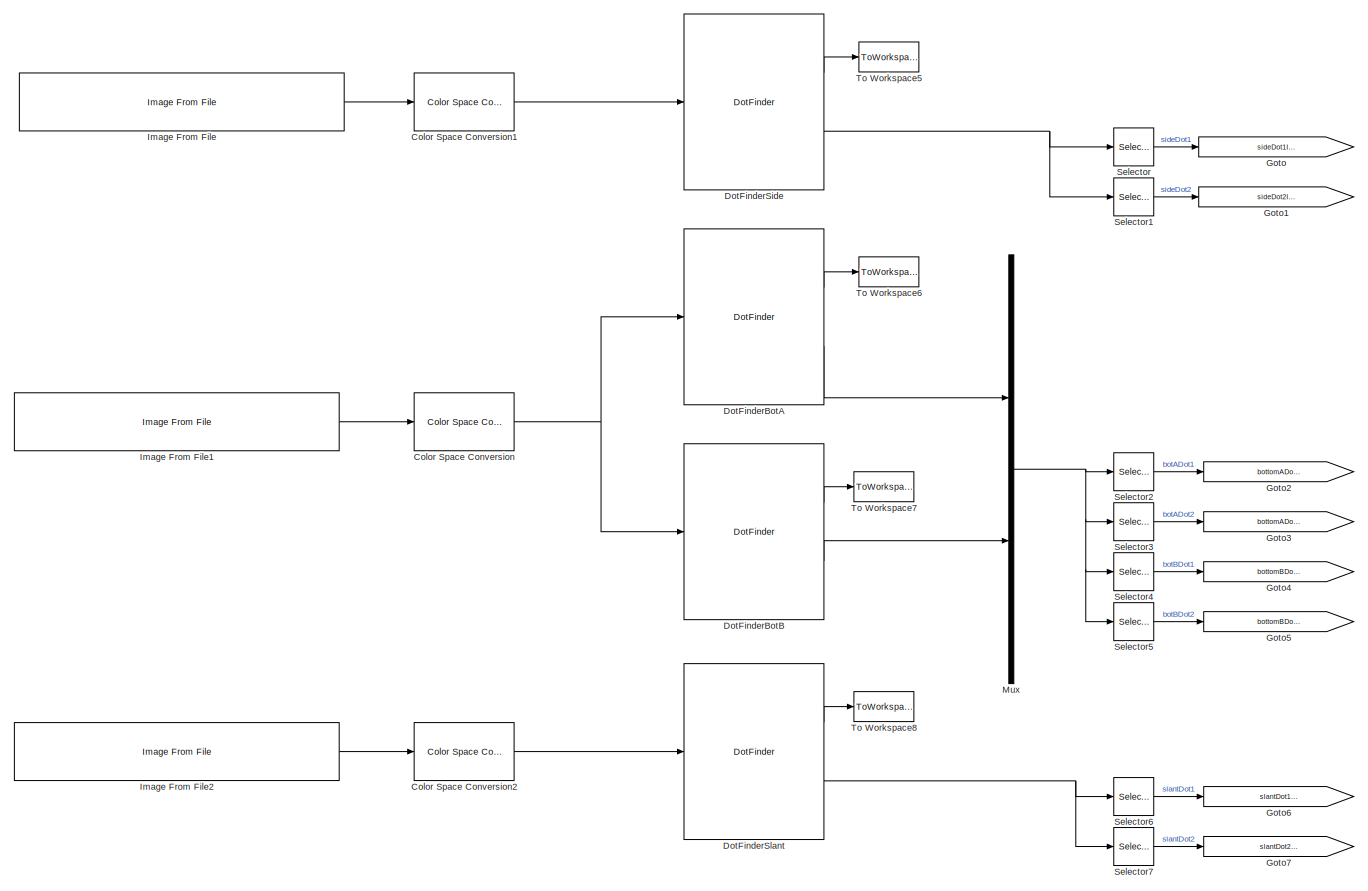
[diagram: root canvas - part 1/3, middle left region]
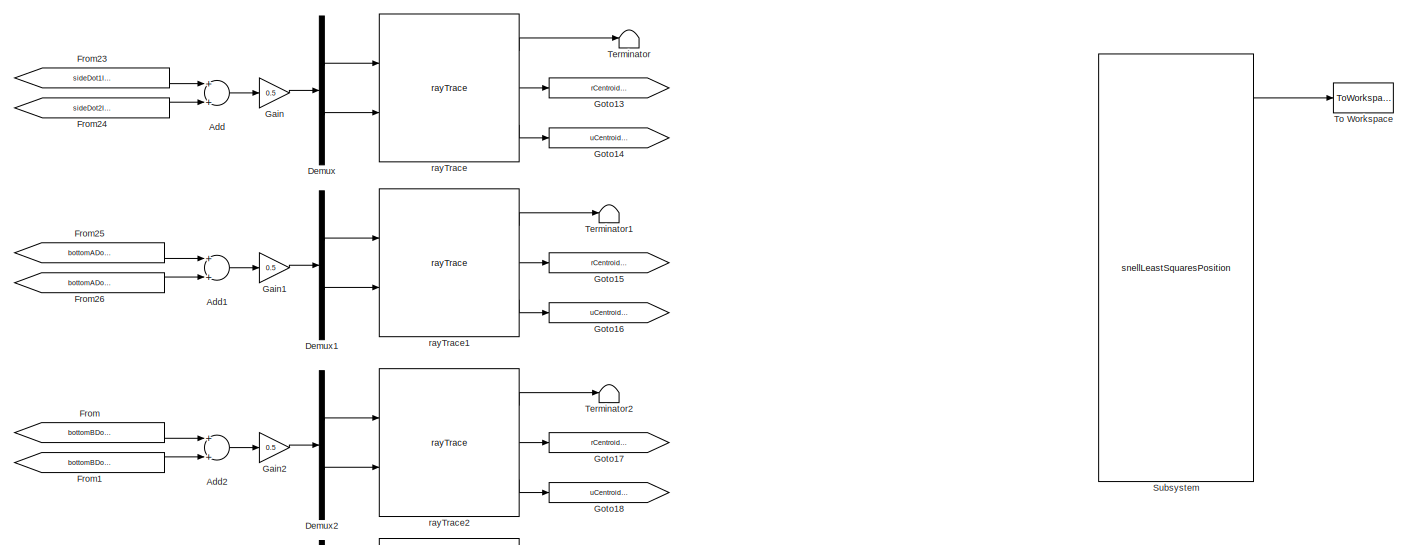
[diagram: root canvas - part 2/3, middle right region]
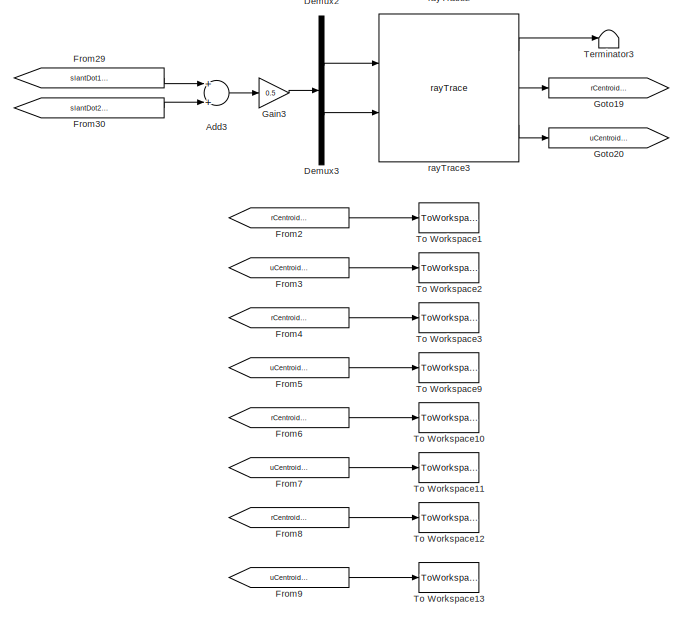
[diagram: root canvas - part 3/3, bottom center region]
MODEL slx_8e519769a42d
KIND model
CONFIG AbsTol = auto
CONFIG EnableMultiTasking = off
CONFIG FixedStep = auto
CONFIG MaxStep = auto
CONFIG MinStep = auto
CONFIG RelTol = 1e-3
CONFIG SampleTimeConstraint = Unconstrained
CONFIG Solver = VariableStepAuto
CONFIG SolverName = VariableStepAuto
CONFIG StartTime = 0.0
CONFIG StopTime = 0
BLOCK [Sum] Add
  Commented = on
  InputSameDT = off
  OutDataTypeStr = Inherit: Inherit via internal rule
  Ports = [2, 1]
  SaturateOnIntegerOverflow = off
BLOCK [Sum] Add1
  Commented = on
  InputSameDT = off
  OutDataTypeStr = Inherit: Inherit via internal rule
  Ports = [2, 1]
  SaturateOnIntegerOverflow = off
BLOCK [Sum] Add2
  Commented = on
  InputSameDT = off
  OutDataTypeStr = Inherit: Inherit via internal rule
  Ports = [2, 1]
  SaturateOnIntegerOverflow = off
BLOCK [Sum] Add3
  Commented = on
  InputSameDT = off
  OutDataTypeStr = Inherit: Inherit via internal rule
  Ports = [2, 1]
  SaturateOnIntegerOverflow = off
BLOCK [Reference] Color Space Conversion  REF=visionconversions/Color Space
 Conversion
  Commented = on
  Ports = [1, 1]
  SourceBlock = visionconversions/Color Space\n Conversion
  SourceProductBaseCode = VP
  SourceProductName = Computer Vision System Toolbox
  SourceType = Color Space Conversion
BLOCK [Reference] Color Space Conversion1  REF=visionconversions/Color Space
 Conversion
  Commented = on
  Ports = [1, 1]
  SourceBlock = visionconversions/Color Space\n Conversion
  SourceProductBaseCode = VP
  SourceProductName = Computer Vision System Toolbox
  SourceType = Color Space Conversion
BLOCK [Reference] Color Space Conversion2  REF=visionconversions/Color Space
 Conversion
  Commented = on
  Ports = [1, 1]
  SourceBlock = visionconversions/Color Space\n Conversion
  SourceProductBaseCode = VP
  SourceProductName = Computer Vision System Toolbox
  SourceType = Color Space Conversion
BLOCK [Demux] Demux
  Commented = on
  DisplayOption = bar
  Outputs = 2
  Ports = [1, 2]
BLOCK [Demux] Demux1
  Commented = on
  DisplayOption = bar
  Outputs = 2
  Ports = [1, 2]
BLOCK [Demux] Demux2
  Commented = on
  DisplayOption = bar
  Outputs = 2
  Ports = [1, 2]
BLOCK [Demux] Demux3
  Commented = on
  DisplayOption = bar
  Outputs = 2
  Ports = [1, 2]
BLOCK [Reference] DotFinderBotA  REF=dotFinder_ul/DotFinder
  Commented = on
  Ports = [1, 2]
  SourceBlock = dotFinder_ul/DotFinder
BLOCK [Reference] DotFinderBotB  REF=dotFinder_ul/DotFinder
  Commented = on
  Ports = [1, 2]
  SourceBlock = dotFinder_ul/DotFinder
BLOCK [Reference] DotFinderSide  REF=dotFinder_ul/DotFinder
  Commented = on
  Ports = [1, 2]
  SourceBlock = dotFinder_ul/DotFinder
BLOCK [Reference] DotFinderSlant  REF=dotFinder_ul/DotFinder
  Commented = on
  Ports = [1, 2]
  SourceBlock = dotFinder_ul/DotFinder
BLOCK [From] From
  Commented = on
  GotoTag = bottomBDot1ImageCoords_px
BLOCK [From] From1
  Commented = on
  GotoTag = bottomBDot2ImageCoords_px
BLOCK [From] From2
  Commented = on
  GotoTag = rCentroidSide
BLOCK [From] From23
  Commented = on
  GotoTag = sideDot1ImageCoords_px
BLOCK [From] From24
  Commented = on
  GotoTag = sideDot2ImageCoords_px
BLOCK [From] From25
  Commented = on
  GotoTag = bottomADot1ImageCoords_px
BLOCK [From] From26
  Commented = on
  GotoTag = bottomADot2ImageCoords_px
BLOCK [From] From29
  Commented = on
  GotoTag = slantDot1ImageCoords_px
BLOCK [From] From3
  Commented = on
  GotoTag = uCentroidSide
BLOCK [From] From30
  Commented = on
  GotoTag = slantDot2ImageCoords_px
BLOCK [From] From4
  Commented = on
  GotoTag = rCentroidBotA
BLOCK [From] From5
  Commented = on
  GotoTag = uCentroidBotA
BLOCK [From] From6
  Commented = on
  GotoTag = rCentroidBotB
BLOCK [From] From7
  Commented = on
  GotoTag = uCentroidBotB
BLOCK [From] From8
  Commented = on
  GotoTag = rCentroidSlant
BLOCK [From] From9
  Commented = on
  GotoTag = uCentroidSlant
BLOCK [Gain] Gain
  Commented = on
  Gain = 0.5
  OutDataTypeStr = Inherit: Inherit via internal rule
  ParamDataTypeStr = Inherit: Inherit via internal rule
  SaturateOnIntegerOverflow = off
BLOCK [Gain] Gain1
  Commented = on
  Gain = 0.5
  OutDataTypeStr = Inherit: Inherit via internal rule
  ParamDataTypeStr = Inherit: Inherit via internal rule
  SaturateOnIntegerOverflow = off
BLOCK [Gain] Gain2
  Commented = on
  Gain = 0.5
  OutDataTypeStr = Inherit: Inherit via internal rule
  ParamDataTypeStr = Inherit: Inherit via internal rule
  SaturateOnIntegerOverflow = off
BLOCK [Gain] Gain3
  Commented = on
  Gain = 0.5
  OutDataTypeStr = Inherit: Inherit via internal rule
  ParamDataTypeStr = Inherit: Inherit via internal rule
  SaturateOnIntegerOverflow = off
BLOCK [Goto] Goto
  Commented = on
  GotoTag = sideDot1ImageCoords_px
BLOCK [Goto] Goto1
  Commented = on
  GotoTag = sideDot2ImageCoords_px
BLOCK [Goto] Goto13
  Commented = on
  GotoTag = rCentroidSide
BLOCK [Goto] Goto14
  Commented = on
  GotoTag = uCentroidSide
BLOCK [Goto] Goto15
  Commented = on
  GotoTag = rCentroidBotA
BLOCK [Goto] Goto16
  Commented = on
  GotoTag = uCentroidBotA
BLOCK [Goto] Goto17
  Commented = on
  GotoTag = rCentroidBotB
BLOCK [Goto] Goto18
  Commented = on
  GotoTag = uCentroidBotB
BLOCK [Goto] Goto19
  Commented = on
  GotoTag = rCentroidSlant
BLOCK [Goto] Goto2
  Commented = on
  GotoTag = bottomADot1ImageCoords_px
BLOCK [Goto] Goto20
  Commented = on
  GotoTag = uCentroidSlant
BLOCK [Goto] Goto3
  Commented = on
  GotoTag = bottomADot2ImageCoords_px
BLOCK [Goto] Goto4
  Commented = on
  GotoTag = bottomBDot1ImageCoords_px
BLOCK [Goto] Goto5
  Commented = on
  GotoTag = bottomBDot2ImageCoords_px
BLOCK [Goto] Goto6
  Commented = on
  GotoTag = slantDot1ImageCoords_px
BLOCK [Goto] Goto7
  Commented = on
  GotoTag = slantDot2ImageCoords_px
BLOCK [Reference] Image From File  REF=visionsources/Image From File
  Commented = on
  Ports = [0, 1]
  SourceBlock = visionsources/Image From File
  SourceProductBaseCode = VP
  SourceProductName = Computer Vision System Toolbox
  SourceType = Image From File
  Tag = vipblks_nd
BLOCK [Reference] Image From File1  REF=visionsources/Image From File
  Commented = on
  Ports = [0, 1]
  SourceBlock = visionsources/Image From File
  SourceProductBaseCode = VP
  SourceProductName = Computer Vision System Toolbox
  SourceType = Image From File
  Tag = vipblks_nd
BLOCK [Reference] Image From File2  REF=visionsources/Image From File
  Commented = on
  Ports = [0, 1]
  SourceBlock = visionsources/Image From File
  SourceProductBaseCode = VP
  SourceProductName = Computer Vision System Toolbox
  SourceType = Image From File
  Tag = vipblks_nd
BLOCK [Mux] Mux
  Commented = on
  DisplayOption = bar
  Inputs = 2
  Ports = [2, 1]
BLOCK [Selector] Selector
  Commented = on
  IndexOptions = Index vector (dialog)
  Indices = [1 2]
  InputPortWidth = 4
  OutputSizes = 1
  Ports = [1, 1]
BLOCK [Selector] Selector1
  Commented = on
  IndexOptions = Index vector (dialog)
  Indices = [3 4]
  InputPortWidth = 4
  OutputSizes = 1
  Ports = [1, 1]
BLOCK [Selector] Selector2
  Commented = on
  IndexOptions = Index vector (dialog)
  Indices = [1 2]
  InputPortWidth = 8
  OutputSizes = 1
  Ports = [1, 1]
BLOCK [Selector] Selector3
  Commented = on
  IndexOptions = Index vector (dialog)
  Indices = [3 4]
  InputPortWidth = 8
  OutputSizes = 1
  Ports = [1, 1]
BLOCK [Selector] Selector4
  Commented = on
  IndexOptions = Index vector (dialog)
  Indices = [5 6]
  InputPortWidth = 8
  OutputSizes = 1
  Ports = [1, 1]
BLOCK [Selector] Selector5
  Commented = on
  IndexOptions = Index vector (dialog)
  Indices = [7 8]
  InputPortWidth = 8
  OutputSizes = 1
  Ports = [1, 1]
BLOCK [Selector] Selector6
  Commented = on
  IndexOptions = Index vector (dialog)
  Indices = [1 2]
  InputPortWidth = 4
  OutputSizes = 1
  Ports = [1, 1]
BLOCK [Selector] Selector7
  Commented = on
  IndexOptions = Index vector (dialog)
  Indices = [3 4]
  InputPortWidth = 4
  OutputSizes = 1
  Ports = [1, 1]
BLOCK [Reference] Subsystem  REF=snellLeastSquaresPosition_ul/snellLeastSquaresPosition
  Ports = [9, 5]
  SourceBlock = snellLeastSquaresPosition_ul/snellLeastSquaresPosition
BLOCK [Terminator] Terminator
  Commented = on
BLOCK [Terminator] Terminator1
  Commented = on
BLOCK [Terminator] Terminator2
  Commented = on
BLOCK [Terminator] Terminator3
  Commented = on
BLOCK [ToWorkspace] To Workspace
  FixptAsFi = on
  MaxDataPoints = inf
  Ports = [1]
  SampleTime = -1
  Save2DSignal = 3-D array (concatenate along third dimension)
  SaveFormat = Timeseries
  VariableName = COMPosVec
BLOCK [ToWorkspace] To Workspace1
  Commented = on
  FixptAsFi = on
  MaxDataPoints = inf
  Ports = [1]
  SampleTime = -1
  Save2DSignal = 3-D array (concatenate along third dimension)
  SaveFormat = Timeseries
  VariableName = rCentroidSide
BLOCK [ToWorkspace] To Workspace10
  Commented = on
  FixptAsFi = on
  MaxDataPoints = inf
  Ports = [1]
  SampleTime = -1
  Save2DSignal = 3-D array (concatenate along third dimension)
  SaveFormat = Timeseries
  VariableName = rCentroidBotB
BLOCK [ToWorkspace] To Workspace11
  Commented = on
  FixptAsFi = on
  MaxDataPoints = inf
  Ports = [1]
  SampleTime = -1
  Save2DSignal = 3-D array (concatenate along third dimension)
  SaveFormat = Timeseries
  VariableName = uCentroidBotB
BLOCK [ToWorkspace] To Workspace12
  Commented = on
  FixptAsFi = on
  MaxDataPoints = inf
  Ports = [1]
  SampleTime = -1
  Save2DSignal = 3-D array (concatenate along third dimension)
  SaveFormat = Timeseries
  VariableName = rCentroidSlant
BLOCK [ToWorkspace] To Workspace13
  Commented = on
  FixptAsFi = on
  MaxDataPoints = inf
  Ports = [1]
  SampleTime = -1
  Save2DSignal = 3-D array (concatenate along third dimension)
  SaveFormat = Timeseries
  VariableName = uCentroidSlant
BLOCK [ToWorkspace] To Workspace2
  Commented = on
  FixptAsFi = on
  MaxDataPoints = inf
  Ports = [1]
  SampleTime = -1
  Save2DSignal = 3-D array (concatenate along third dimension)
  SaveFormat = Timeseries
  VariableName = uCentroidSide
BLOCK [ToWorkspace] To Workspace3
  Commented = on
  FixptAsFi = on
  MaxDataPoints = inf
  Ports = [1]
  SampleTime = -1
  Save2DSignal = 3-D array (concatenate along third dimension)
  SaveFormat = Timeseries
  VariableName = rCentroidBotA
BLOCK [ToWorkspace] To Workspace5
  Commented = on
  FixptAsFi = on
  MaxDataPoints = inf
  Ports = [1]
  SampleTime = -1
  Save2DSignal = 3-D array (concatenate along third dimension)
  VariableName = sideImage
BLOCK [ToWorkspace] To Workspace6
  Commented = on
  FixptAsFi = on
  MaxDataPoints = inf
  Ports = [1]
  SampleTime = -1
  Save2DSignal = 3-D array (concatenate along third dimension)
  VariableName = botImageA
BLOCK [ToWorkspace] To Workspace7
  Commented = on
  FixptAsFi = on
  MaxDataPoints = inf
  Ports = [1]
  SampleTime = -1
  Save2DSignal = 3-D array (concatenate along third dimension)
  VariableName = botImageB
BLOCK [ToWorkspace] To Workspace8
  Commented = on
  FixptAsFi = on
  MaxDataPoints = inf
  Ports = [1]
  SampleTime = -1
  Save2DSignal = 3-D array (concatenate along third dimension)
  VariableName = slantImage
BLOCK [ToWorkspace] To Workspace9
  Commented = on
  FixptAsFi = on
  MaxDataPoints = inf
  Ports = [1]
  SampleTime = -1
  Save2DSignal = 3-D array (concatenate along third dimension)
  SaveFormat = Timeseries
  VariableName = uCentroidBotA
BLOCK [Reference] rayTrace  REF=rayTrace_ul/rayTrace
  Commented = on
  Ports = [2, 3]
  SourceBlock = rayTrace_ul/rayTrace
BLOCK [Reference] rayTrace1  REF=rayTrace_ul/rayTrace
  Commented = on
  Ports = [2, 3]
  SourceBlock = rayTrace_ul/rayTrace
BLOCK [Reference] rayTrace2  REF=rayTrace_ul/rayTrace
  Commented = on
  Ports = [2, 3]
  SourceBlock = rayTrace_ul/rayTrace
BLOCK [Reference] rayTrace3  REF=rayTrace_ul/rayTrace
  Commented = on
  Ports = [2, 3]
  SourceBlock = rayTrace_ul/rayTrace
LINE Add1:1 -> Gain1:1
LINE Add2:1 -> Gain2:1
LINE Add3:1 -> Gain3:1
LINE Add:1 -> Gain:1
LINE Color Space Conversion1:1 -> DotFinderSide:1
LINE Color Space Conversion2:1 -> DotFinderSlant:1
NET Color Space Conversion:1 -> DotFinderBotA:1, DotFinderBotB:1
LINE Demux1:1 -> rayTrace1:1
LINE Demux1:2 -> rayTrace1:2
LINE Demux2:1 -> rayTrace2:1
LINE Demux2:2 -> rayTrace2:2
LINE Demux3:1 -> rayTrace3:1
LINE Demux3:2 -> rayTrace3:2
LINE Demux:1 -> rayTrace:1
LINE Demux:2 -> rayTrace:2
LINE DotFinderBotA:1 -> To Workspace6:1
LINE DotFinderBotA:2 -> Mux:1
LINE DotFinderBotB:1 -> To Workspace7:1
LINE DotFinderBotB:2 -> Mux:2
LINE DotFinderSide:1 -> To Workspace5:1
NET DotFinderSide:2 -> Selector1:1, Selector:1
LINE DotFinderSlant:1 -> To Workspace8:1
NET DotFinderSlant:2 -> Selector6:1, Selector7:1
LINE From1:1 -> Add2:2
LINE From23:1 -> Add:1
LINE From24:1 -> Add:2
LINE From25:1 -> Add1:1
LINE From26:1 -> Add1:2
LINE From29:1 -> Add3:1
LINE From2:1 -> To Workspace1:1
LINE From30:1 -> Add3:2
LINE From3:1 -> To Workspace2:1
LINE From4:1 -> To Workspace3:1
LINE From5:1 -> To Workspace9:1
LINE From6:1 -> To Workspace10:1
LINE From7:1 -> To Workspace11:1
LINE From8:1 -> To Workspace12:1
LINE From9:1 -> To Workspace13:1
LINE From:1 -> Add2:1
LINE Gain1:1 -> Demux1:1
LINE Gain2:1 -> Demux2:1
LINE Gain3:1 -> Demux3:1
LINE Gain:1 -> Demux:1
LINE Image From File1:1 -> Color Space Conversion:1
LINE Image From File2:1 -> Color Space Conversion2:1
LINE Image From File:1 -> Color Space Conversion1:1
NET Mux:1 -> Selector2:1, Selector3:1, Selector4:1, Selector5:1
LINE Selector1:1 -> Goto1:1
LINE Selector2:1 -> Goto2:1
LINE Selector3:1 -> Goto3:1
LINE Selector4:1 -> Goto4:1
LINE Selector5:1 -> Goto5:1
LINE Selector6:1 -> Goto6:1
LINE Selector7:1 -> Goto7:1
LINE Selector:1 -> Goto:1
LINE Subsystem:1 -> To Workspace:1
LINE rayTrace1:1 -> Terminator1:1
LINE rayTrace1:2 -> Goto15:1
LINE rayTrace1:3 -> Goto16:1
LINE rayTrace2:1 -> Terminator2:1
LINE rayTrace2:2 -> Goto17:1
LINE rayTrace2:3 -> Goto18:1
LINE rayTrace3:1 -> Terminator3:1
LINE rayTrace3:2 -> Goto19:1
LINE rayTrace3:3 -> Goto20:1
LINE rayTrace:1 -> Terminator:1
LINE rayTrace:2 -> Goto13:1
LINE rayTrace:3 -> Goto14:1
note: NET lines group one-source signal fan-out (src -> all destinations, sorted); 1:1 wires keep LINE
